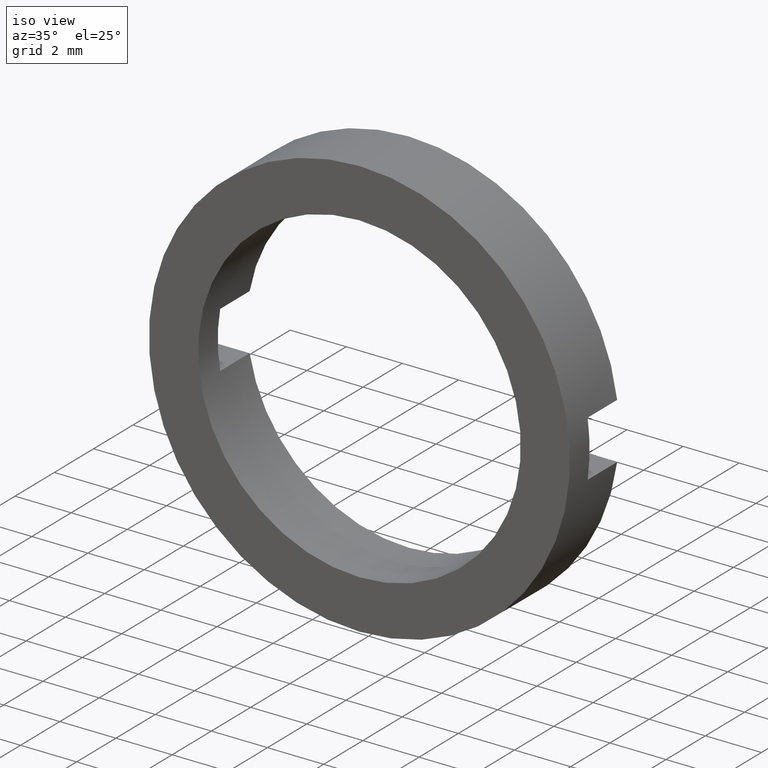
[diagram: clean part render]
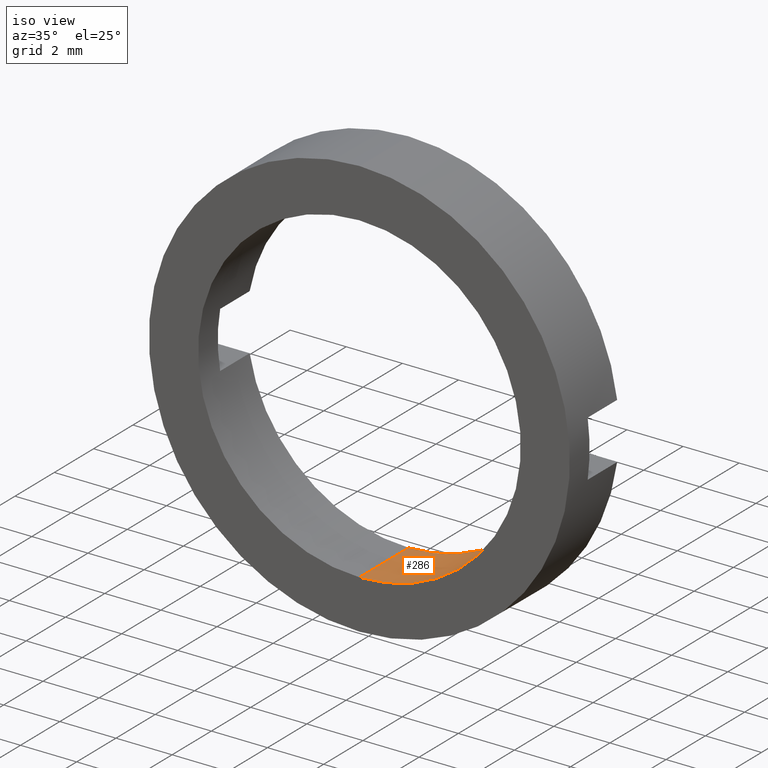
[diagram: same view with one face highlighted and labeled with its STEP entity id]
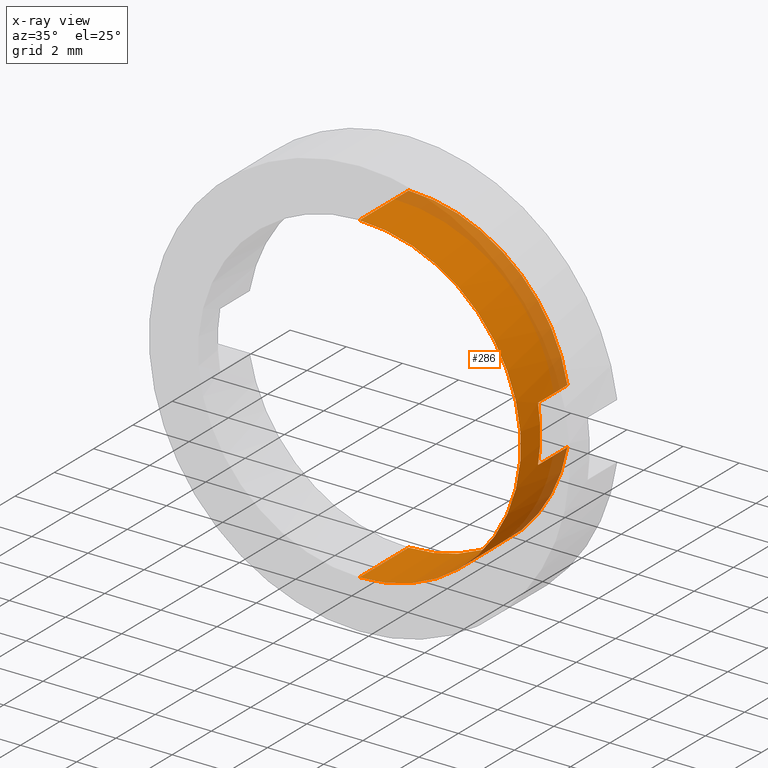
[diagram: x-ray of the same camera — body ghosted, the highlighted face saturated]
A machine part, iso view. The second image highlights one B-rep face of the part: STEP entity #286.
The next image is the same camera in x-ray: the body ghosted, the highlighted face saturated — about 23% of this face is hidden behind the body in this view.
In plain terms, the highlighted cylindrical surface (partial cylindrical patch) has radius 5.75 mm, axis along (-0, 1, -0).
Its self-contained STEP definition (entity closure, byte-faithful):
#19 = CIRCLE ( 'NONE', #69, 5.750000000000008900 ) ;
#22 = EDGE_CURVE ( 'NONE', #574, #531, #246, .T. ) ;
#31 = CARTESIAN_POINT ( 'NONE',  ( 0.0000000000000000000, 56.26084262701361600, 5.750000000000008000 ) ) ;
#33 = DIRECTION ( 'NONE',  ( 0.0000000000000000000, 0.0000000000000000000, 1.000000000000000000 ) ) ;
#37 = AXIS2_PLACEMENT_3D ( 'NONE', #351, #90, #500 ) ;
#46 = EDGE_CURVE ( 'NONE', #129, #226, #284, .T. ) ;
#48 = DIRECTION ( 'NONE',  ( -0.0000000000000000000, 1.000000000000000000, -0.0000000000000000000 ) ) ;
#67 = LINE ( 'NONE', #464, #537 ) ;
#69 = AXIS2_PLACEMENT_3D ( 'NONE', #82, #588, #175 ) ;
#71 = VERTEX_POINT ( 'NONE', #194 ) ;
#73 = CARTESIAN_POINT ( 'NONE',  ( 0.0000000000000000000, 56.26084262701361600, 0.0000000000000000000 ) ) ;
#82 = CARTESIAN_POINT ( 'NONE',  ( 0.0000000000000000000, -4.464249787179428900, 0.0000000000000000000 ) ) ;
#90 = DIRECTION ( 'NONE',  ( -0.0000000000000000000, -1.000000000000000000, -0.0000000000000000000 ) ) ;
#122 = EDGE_CURVE ( 'NONE', #226, #71, #67, .T. ) ;
#124 = ORIENTED_EDGE ( 'NONE', *, *, #339, .T. ) ;
#129 = VERTEX_POINT ( 'NONE', #381 ) ;
#136 = LINE ( 'NONE', #31, #391 ) ;
#139 = VERTEX_POINT ( 'NONE', #567 ) ;
#147 = EDGE_LOOP ( 'NONE', ( #560, #233, #124, #576, #170, #191, #267, #585 ) ) ;
#170 = ORIENTED_EDGE ( 'NONE', *, *, #122, .T. ) ;
#171 = CARTESIAN_POINT ( 'NONE',  ( 5.662375826453070400, 56.26084262701361600, -1.000000000000000000 ) ) ;
#175 = DIRECTION ( 'NONE',  ( 0.0000000000000000000, 0.0000000000000000000, 1.000000000000000000 ) ) ;
#191 = ORIENTED_EDGE ( 'NONE', *, *, #445, .F. ) ;
#193 = DIRECTION ( 'NONE',  ( 0.0000000000000000000, 0.0000000000000000000, 1.000000000000000000 ) ) ;
#194 = CARTESIAN_POINT ( 'NONE',  ( 5.662375826453069500, -3.464249787179428400, 0.9999999999999995600 ) ) ;
#204 = DIRECTION ( 'NONE',  ( -0.0000000000000000000, 1.000000000000000000, -0.0000000000000000000 ) ) ;
#209 = CARTESIAN_POINT ( 'NONE',  ( 0.0000000000000000000, -4.464249787179428900, 5.750000000000008900 ) ) ;
#213 = CARTESIAN_POINT ( 'NONE',  ( 7.041719095097290700E-016, -1.964249787179434000, -5.750000000000007100 ) ) ;
#226 = VERTEX_POINT ( 'NONE', #411 ) ;
#233 = ORIENTED_EDGE ( 'NONE', *, *, #364, .F. ) ;
#241 = CIRCLE ( 'NONE', #298, 5.750000000000007100 ) ;
#245 = LINE ( 'NONE', #171, #251 ) ;
#246 = LINE ( 'NONE', #318, #545 ) ;
#249 = EDGE_CURVE ( 'NONE', #139, #531, #241, .T. ) ;
#251 = VECTOR ( 'NONE', #446, 1000.000000000000000 ) ;
#260 = CYLINDRICAL_SURFACE ( 'NONE', #450, 5.750000000000008000 ) ;
#265 = DIRECTION ( 'NONE',  ( 0.0000000000000000000, 0.0000000000000000000, 1.000000000000000000 ) ) ;
#267 = ORIENTED_EDGE ( 'NONE', *, *, #489, .T. ) ;
#284 = CIRCLE ( 'NONE', #376, 5.750000000000007100 ) ;
#286 = ADVANCED_FACE ( 'NONE', ( #342 ), #260, .F. ) ;
#291 = VERTEX_POINT ( 'NONE', #209 ) ;
#298 = AXIS2_PLACEMENT_3D ( 'NONE', #447, #204, #33 ) ;
#309 = CARTESIAN_POINT ( 'NONE',  ( 5.662375826453069500, -3.464249787179428400, -0.9999999999999995600 ) ) ;
#318 = CARTESIAN_POINT ( 'NONE',  ( 7.041719095097290700E-016, 56.26084262701361600, -5.750000000000008000 ) ) ;
#339 = EDGE_CURVE ( 'NONE', #291, #129, #136, .T. ) ;
#342 = FACE_OUTER_BOUND ( 'NONE', #147, .T. ) ;
#351 = CARTESIAN_POINT ( 'NONE',  ( 0.0000000000000000000, -3.464249787179428400, 0.0000000000000000000 ) ) ;
#364 = EDGE_CURVE ( 'NONE', #291, #574, #19, .T. ) ;
#376 = AXIS2_PLACEMENT_3D ( 'NONE', #473, #428, #193 ) ;
#381 = CARTESIAN_POINT ( 'NONE',  ( 0.0000000000000000000, -1.964249787179434000, 5.750000000000007100 ) ) ;
#391 = VECTOR ( 'NONE', #397, 1000.000000000000000 ) ;
#397 = DIRECTION ( 'NONE',  ( -0.0000000000000000000, 1.000000000000000000, -0.0000000000000000000 ) ) ;
#405 = CARTESIAN_POINT ( 'NONE',  ( 7.041719095097292700E-016, -4.464249787179428900, -5.750000000000008900 ) ) ;
#411 = CARTESIAN_POINT ( 'NONE',  ( 5.662375826453069500, -1.964249787179434000, 0.9999999999999995600 ) ) ;
#425 = DIRECTION ( 'NONE',  ( 0.0000000000000000000, -1.000000000000000000, 0.0000000000000000000 ) ) ;
#428 = DIRECTION ( 'NONE',  ( -0.0000000000000000000, 1.000000000000000000, -0.0000000000000000000 ) ) ;
#445 = EDGE_CURVE ( 'NONE', #581, #71, #550, .T. ) ;
#446 = DIRECTION ( 'NONE',  ( -0.0000000000000000000, 1.000000000000000000, -0.0000000000000000000 ) ) ;
#447 = CARTESIAN_POINT ( 'NONE',  ( 0.0000000000000000000, -1.964249787179434000, 0.0000000000000000000 ) ) ;
#450 = AXIS2_PLACEMENT_3D ( 'NONE', #73, #498, #265 ) ;
#464 = CARTESIAN_POINT ( 'NONE',  ( 5.662375826453070400, 56.26084262701361600, 1.000000000000000000 ) ) ;
#473 = CARTESIAN_POINT ( 'NONE',  ( 0.0000000000000000000, -1.964249787179434000, 0.0000000000000000000 ) ) ;
#489 = EDGE_CURVE ( 'NONE', #581, #139, #245, .T. ) ;
#498 = DIRECTION ( 'NONE',  ( -0.0000000000000000000, 1.000000000000000000, -0.0000000000000000000 ) ) ;
#500 = DIRECTION ( 'NONE',  ( -2.664535259100375300E-015, 0.0000000000000000000, 1.000000000000000000 ) ) ;
#531 = VERTEX_POINT ( 'NONE', #213 ) ;
#537 = VECTOR ( 'NONE', #425, 1000.000000000000000 ) ;
#545 = VECTOR ( 'NONE', #48, 1000.000000000000000 ) ;
#550 = CIRCLE ( 'NONE', #37, 5.750000000000008000 ) ;
#560 = ORIENTED_EDGE ( 'NONE', *, *, #22, .F. ) ;
#567 = CARTESIAN_POINT ( 'NONE',  ( 5.662375826453069500, -1.964249787179434000, -0.9999999999999995600 ) ) ;
#574 = VERTEX_POINT ( 'NONE', #405 ) ;
#576 = ORIENTED_EDGE ( 'NONE', *, *, #46, .T. ) ;
#581 = VERTEX_POINT ( 'NONE', #309 ) ;
#585 = ORIENTED_EDGE ( 'NONE', *, *, #249, .T. ) ;
#588 = DIRECTION ( 'NONE',  ( -0.0000000000000000000, 1.000000000000000000, -0.0000000000000000000 ) ) ;